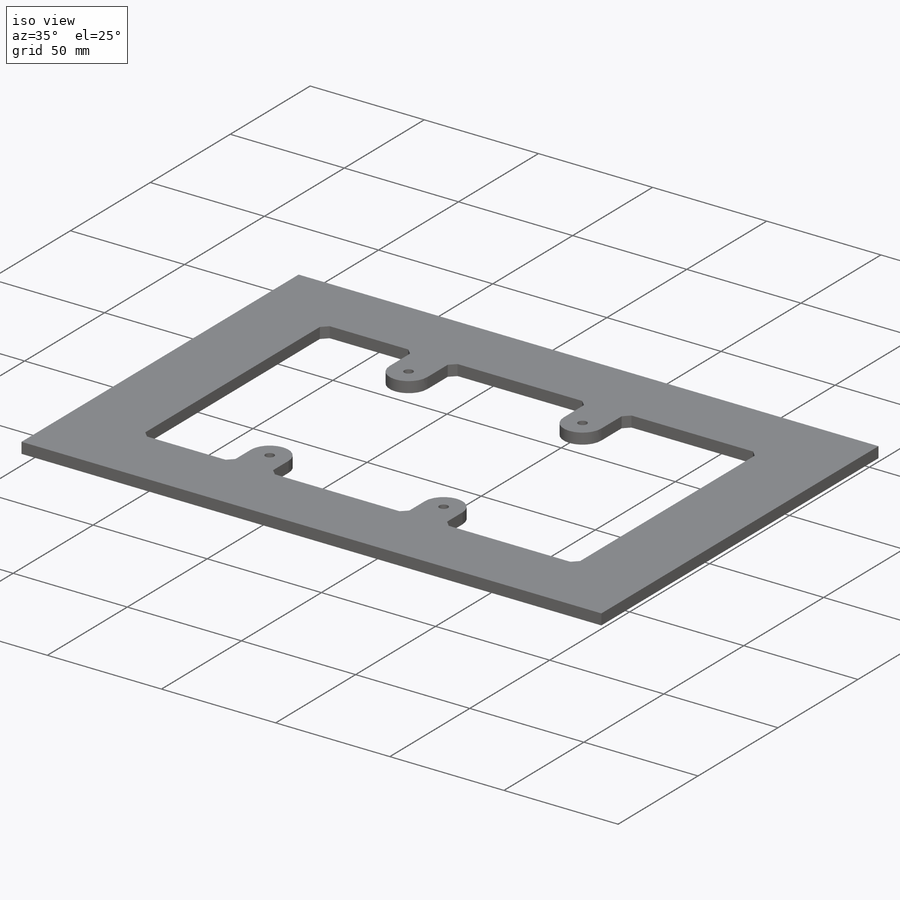
[diagram: iso view]
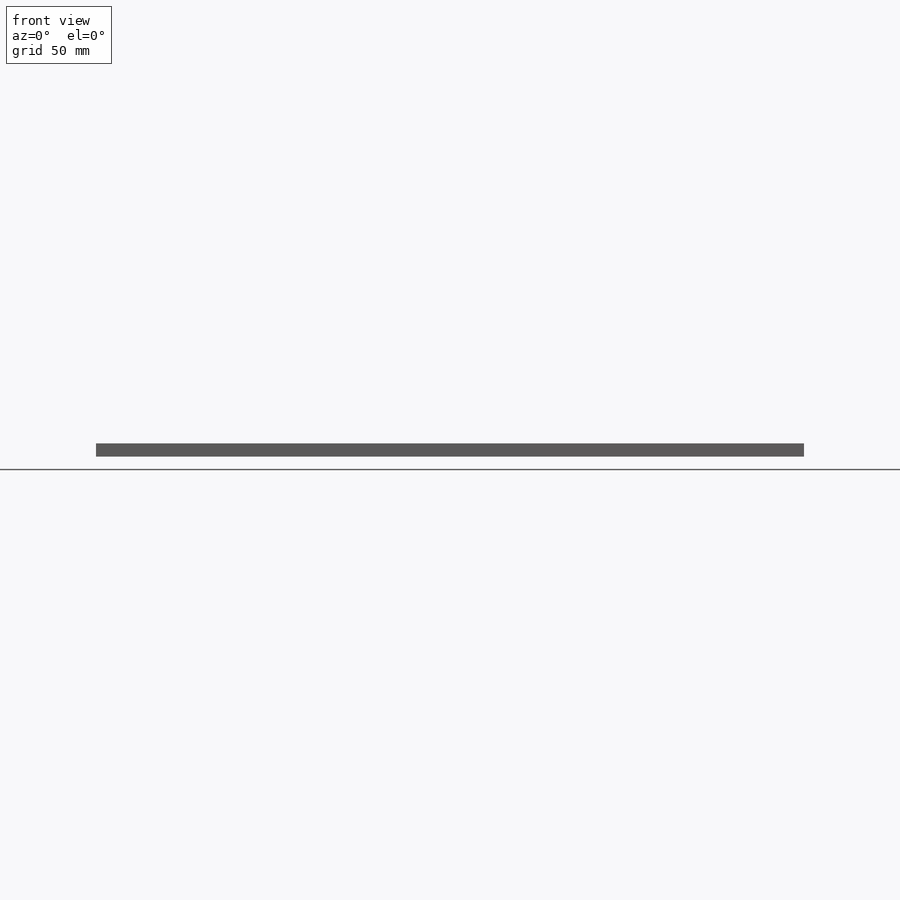
[diagram: front view]
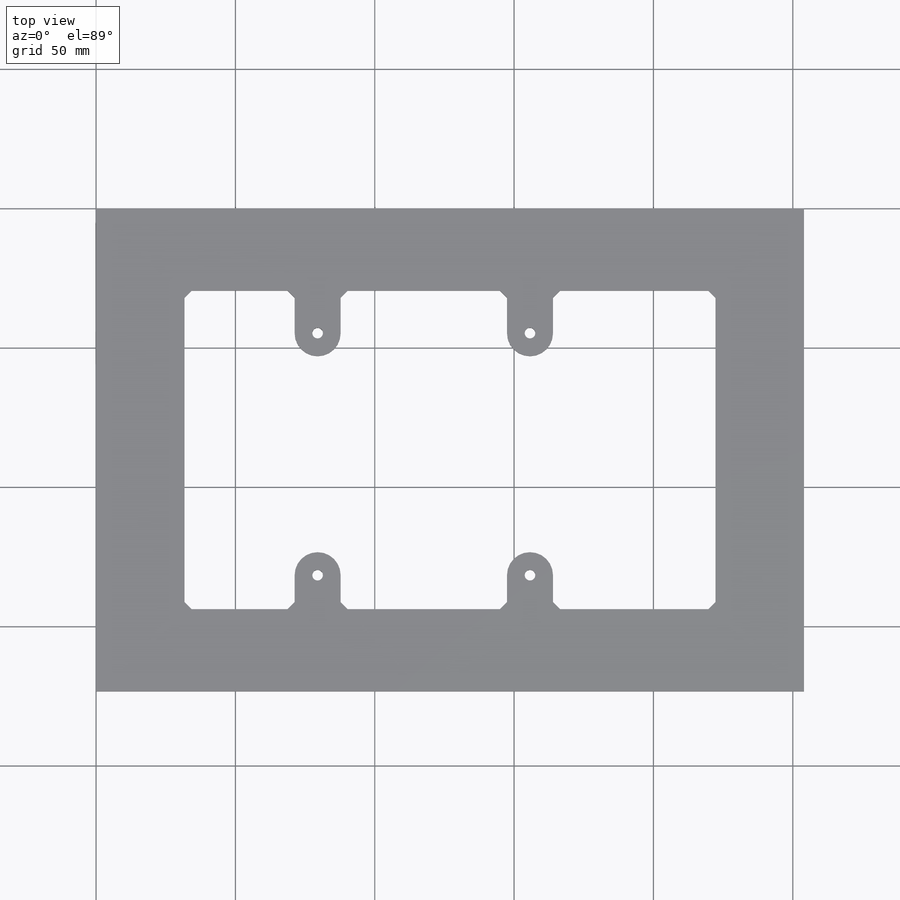
[diagram: top view]
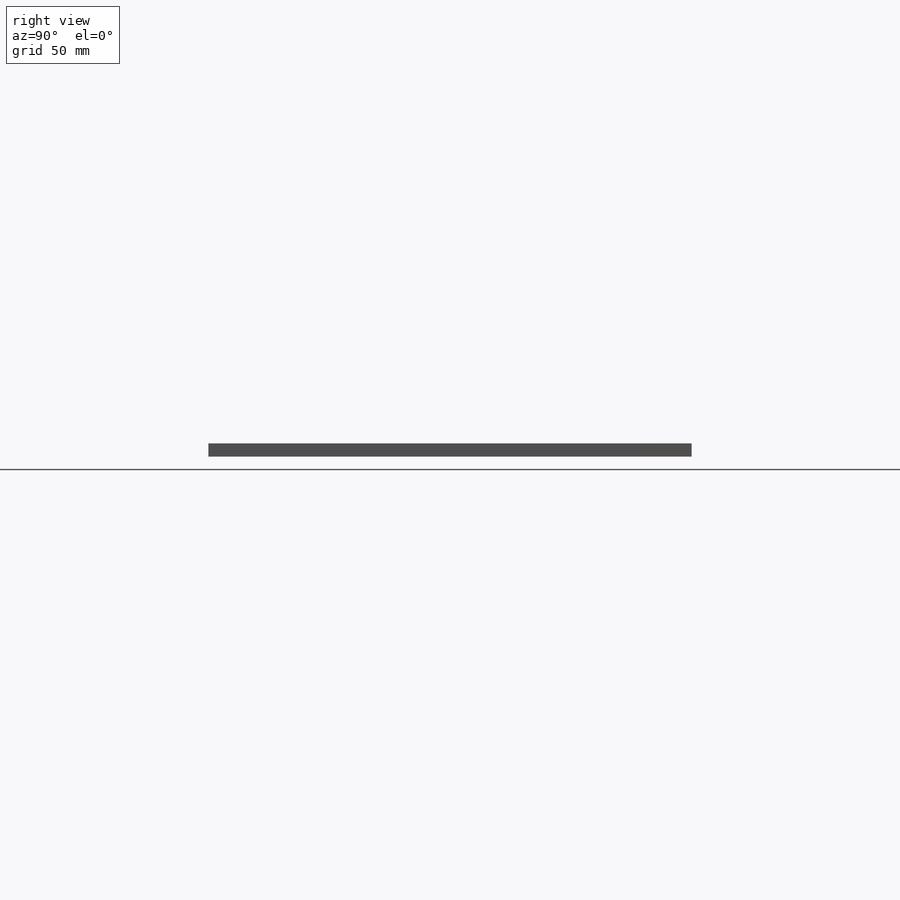
[diagram: right view]
SOLIDWORKS PART (.sldprt)
format: sldprt  version: not decoded by parser v0  size: 311,296 bytes
history: native  units: mm
features: sketch x5, extrude x2, material x1, cut_extrude x1, hole x1, chamfer x1 (+11 scaffold rows collapsed)
feature tree (22):
  scaffold x11  (default folders/planes/origin — collapsed)
  material  "Delrin 2700 NC010, Low Viscosity Acetal Copolymer (SS)"
  sketch  "Sketch1"  dims[D1=254.0mm D2=173.355mm]
  extrude  "Boss-Extrude1"  Depth=4.7625mm
  sketch  "Sketch2"  dims[D1=114.3mm D2=190.5mm]
  cut_extrude  "Cut-Extrude1"  Depth=4.7625mm
  sketch  "Sketch3"  dims[c1.D7=8.255mm c1.D9=8.255mm c1.D1=185.42mm c1.D2=114.3mm c1.D3=45.212mm c1.D4=15.24mm c1.D5=76.2mm c1.D6=86.868mm c2.D7=~111.265487mm c2.D8=12.7mm c2.D10=59.69mm]
  extrude  "Boss-Extrude2"  Depth=4.7625mm
  hole  "#6 Clearance Hole1"  Diameter=3.7973mm Depth=25.4mm
  sketch  "Sketch5"
  sketch  "Sketch6"  dims[hole-wizard template sketch: 50 standard entries collapsed; hole parameters above]
  chamfer  "Chamfer1"  Distance=2.54mm Angle=45deg
decode coverage: 9 of 10 modeling features carry decoded parameters
note: ~ marks probable driven/reference dimensions
note: suppression state not decoded; provenance and decode notes live in map.json
